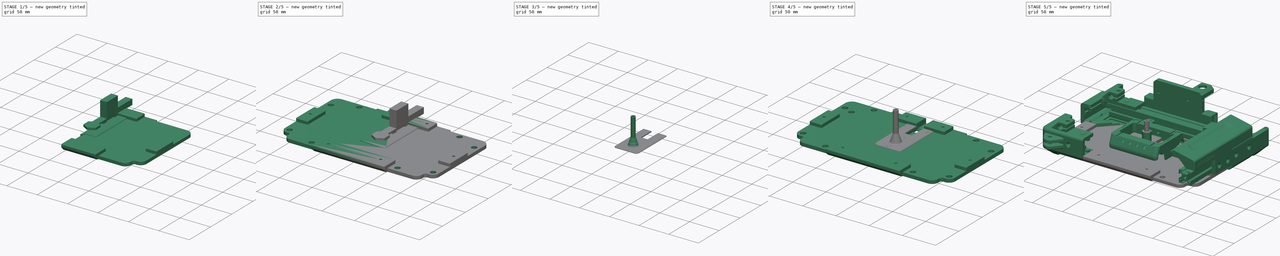
[diagram: build sequence overview — one tinted view per stage of 5, left to right]
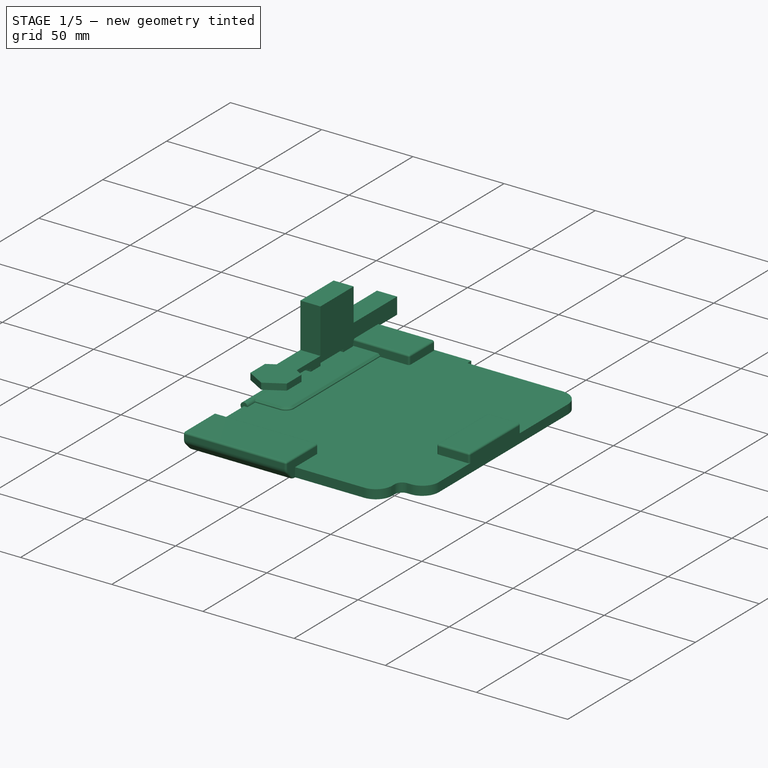
[diagram: stage 1 of 5 — iso view after this stage's code; geometry added in this stage tinted green]
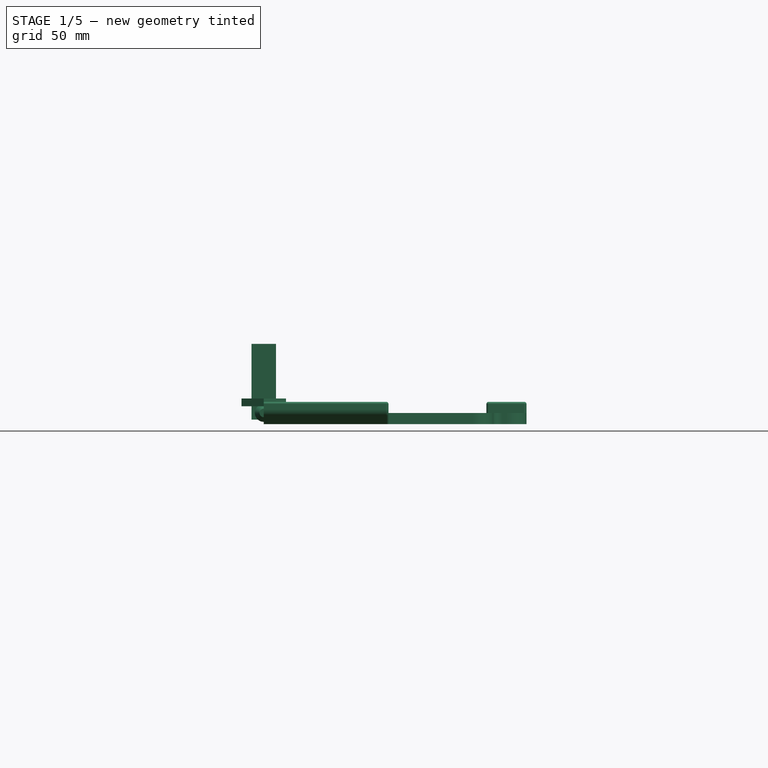
[diagram: stage 1 of 5 — front view after this stage's code; geometry added in this stage tinted green]
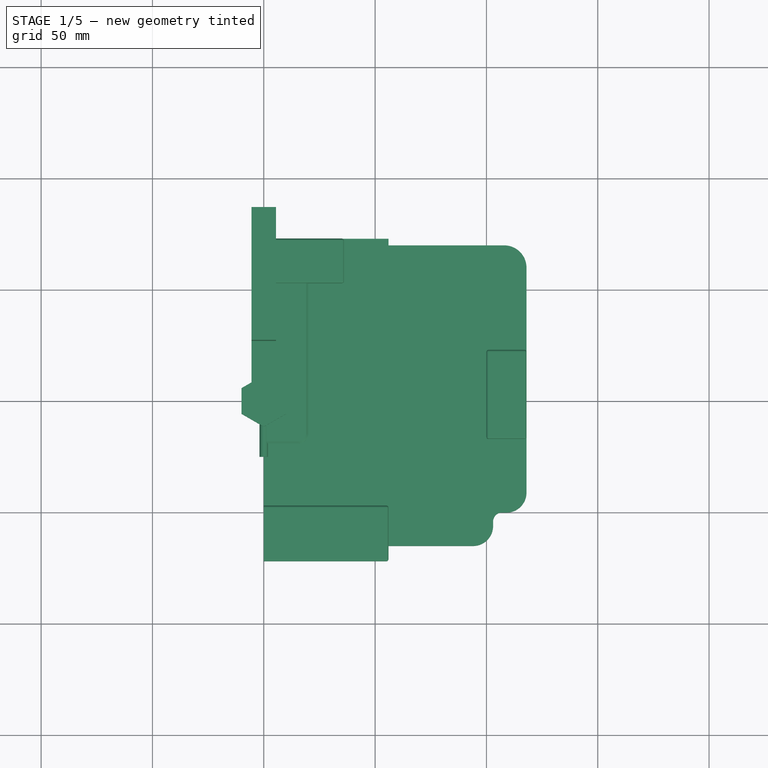
[diagram: stage 1 of 5 — top view after this stage's code; geometry added in this stage tinted green]
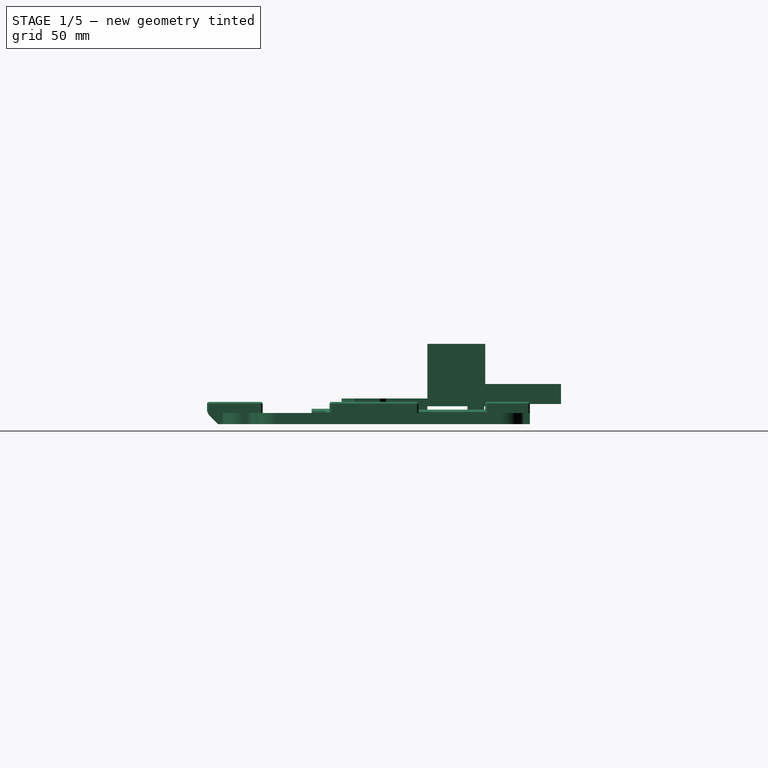
[diagram: stage 1 of 5 — right view after this stage's code; geometry added in this stage tinted green]
FCSTD DOCUMENT  (FreeCAD 0.16RUnknown)
Label: LowerCover
License: All rights reserved
LicenseURL: http://en.wikipedia.org/wiki/All_rights_reserved
objects: Part::FeaturePython×36, Part::Cut×20, Sketcher::SketchObject×18, PartDesign::Pad×13, Part::MultiFuse×10, Part::Mirroring×9, App::DocumentObjectGroup×9, PartDesign::Revolution×5, Part::Fillet×3, Part::Feature×2, Part::Chamfer×2, Part::Cylinder×2, Part::Part2DObjectPython×2, Spreadsheet::Sheet×1, Part::Extrusion×1, PartDesign::Pocket×1, PartDesign::Mirrored×1, Part::MultiCommon×1
note: 145 computed .brp shape members not serialized (recipe doc carries the construction recipe); baked Part::Feature solids carry a one-line shape summary decoded from their .brp

FEATURE [PartDesign::Pad] Pad  label="MainPlate001"
  Length = 5
  Length2 = 100
  Reversed = true
  Sketch = -> Sketch
  Type = 0
FEATURE [Part::FeaturePython] Clone  label="ALULED"  # WARN: FeaturePython — macro-defined, semantics opaque (R4)
  Placement = pos=(0,0,3) rot=(0,0,1;0.523599rad)
  Scale = (1,1,1)
FEATURE [Sketcher::SketchObject] Sketch005  label="CenterCavity"
  Placement = pos=(0,0,3) rot=(0,0,1;0rad)
  expr: Placement.Base.z = ALULED.Placement.Base.z
  sketch-geometry (7):
    g0: LineSegment StartX=10 StartY=-5.7735 StartZ=0 EndX=10 EndY=5.7735 EndZ=0
    g1: LineSegment StartX=10 StartY=5.7735 StartZ=0 EndX=0 EndY=11.547 EndZ=0
    g2: LineSegment StartX=0 StartY=11.547 StartZ=0 EndX=-10 EndY=5.7735 EndZ=0
    g3: LineSegment StartX=-10 StartY=5.7735 StartZ=0 EndX=-10 EndY=-5.7735 EndZ=0
    g4: LineSegment StartX=-10 StartY=-5.7735 StartZ=0 EndX=0 EndY=-11.547 EndZ=0
    g5: LineSegment StartX=0 StartY=-11.547 StartZ=0 EndX=10 EndY=-5.7735 EndZ=0
    g6: Circle [constr] CenterX=0 CenterY=0 CenterZ=0 NormalX=0 NormalY=0 NormalZ=1 Radius=11.547
  constraints (18):
    c: Coincident(g0,g1)
    c: Coincident(g1,g2)
    c: Coincident(g2,g3)
    c: Coincident(g3,g4)
    c: Coincident(g4,g5)
    c: Coincident(g5,g0)
    c: Equal(g0, g1-g5) x5
    c: PointOnObject(g0,g6)
    c: PointOnObject(g1,g6)
    c: PointOnObject(g2,g6)
    c: PointOnObject(g3,g6)
    c: PointOnObject(g4,g6)
    c: PointOnObject(g5,g6)
    c: Coincident(g6,g-1)
    c: Distance(g1,g0) = 20
    c: PointOnObject(g1,g-2)
    c: DistanceX(g2) = -10  'BoltX'
    c: DistanceY(g2) = 5.7735  'BoltY'
FEATURE [PartDesign::Pad] Pad004  label="LEDCavity"
  Length = 3.5
  Length2 = 100
  Placement = pos=(0,0,3) rot=(0,0,1;0rad)
  Sketch = -> Sketch005
  Type = 0
FEATURE [Sketcher::SketchObject] Sketch006  label="Wire1stSegment"
  Placement = pos=(0,0,6.5) rot=(0,0,1;0rad)
  Support = -> Pad004 [Face8]
  sketch-geometry (4):
    g0: LineSegment StartX=-5.5 StartY=20 StartZ=0 EndX=5.5 EndY=20 EndZ=0
    g1: LineSegment StartX=5.5 StartY=20 StartZ=0 EndX=5.5 EndY=0 EndZ=0
    g2: LineSegment StartX=5.5 StartY=0 StartZ=0 EndX=-5.5 EndY=0 EndZ=0
    g3: LineSegment StartX=-5.5 StartY=0 StartZ=0 EndX=-5.5 EndY=20 EndZ=0
  constraints (12):
    c: Coincident(g0,g1)
    c: Coincident(g1,g2)
    c: Coincident(g2,g3)
    c: Coincident(g3,g0)
    c: Horizontal(g0)
    c: Horizontal(g2)
    c: Vertical(g1)
    c: Vertical(g3)
    c: PointOnObject(g2,g-1)
    c: Symmetric(g2,g1,g-2)
    c: DistanceX(g0,g0) = 11
    c: DistanceY(g0) = 20
FEATURE [PartDesign::Pad] Pad005  label="Wire1stSegment001"
  Length = 2.5
  Length2 = 100
  Placement = pos=(0,0,3) rot=(0,0,1;0rad)
  Reversed = true
  Sketch = -> Sketch006
  Type = 0
FEATURE [Sketcher::SketchObject] Sketch015  label="FemtoCavity"
  Placement = pos=(5.5,0,3) rot=(0.57735,0.57735,0.57735;2.0944rad)
  Support = -> Pad005 [Face8]
  sketch-geometry (19):
    g0: LineSegment StartX=17 StartY=3.5 StartZ=0 EndX=17 EndY=0 EndZ=0
    g1: LineSegment StartX=17 StartY=0 StartZ=0 EndX=19.5 EndY=0 EndZ=0
    g2: LineSegment StartX=19.5 StartY=0 StartZ=0 EndX=19.5 EndY=-6 EndZ=0
    g3: LineSegment StartX=19.5 StartY=-6 StartZ=0 EndX=27 EndY=-6 EndZ=0
    g4: LineSegment StartX=27 StartY=-6 StartZ=0 EndX=27 EndY=0 EndZ=0
    g5: LineSegment StartX=27 StartY=0 StartZ=0 EndX=45 EndY=0 EndZ=0
    g6: LineSegment StartX=45 StartY=0 StartZ=0 EndX=45 EndY=-6 EndZ=0
    g7: LineSegment StartX=45 StartY=-6 StartZ=0 EndX=52.5 EndY=-6 EndZ=0
    g8: LineSegment StartX=52.5 StartY=-6 StartZ=0 EndX=52.5 EndY=0 EndZ=0
    g9: LineSegment StartX=52.5 StartY=0 StartZ=0 EndX=55 EndY=0 EndZ=0
    g10: LineSegment StartX=55 StartY=0 StartZ=0 EndX=55 EndY=1 EndZ=0
    g11: LineSegment StartX=55 StartY=1 StartZ=0 EndX=87 EndY=1 EndZ=0
    g12: LineSegment StartX=87 StartY=1 StartZ=0 EndX=87 EndY=10 EndZ=0
    g13: LineSegment StartX=53 StartY=10 StartZ=0 EndX=53 EndY=28 EndZ=0
    g14: LineSegment StartX=53 StartY=28 StartZ=0 EndX=27 EndY=28 EndZ=0
    g15: LineSegment StartX=27 StartY=28 StartZ=0 EndX=27 EndY=3.5 EndZ=0
    g16: LineSegment StartX=27 StartY=3.5 StartZ=0 EndX=17 EndY=3.5 EndZ=0
    g17: GeomPoint [constr] X=36 Y=28 Z=0
    g18: LineSegment StartX=53 StartY=10 StartZ=0 EndX=87 EndY=10 EndZ=0
  constraints (57):
    c: Coincident(g0,g1)
    c: Coincident(g1,g2)
    c: Coincident(g2,g3)
    c: Coincident(g3,g4)
    c: Coincident(g4,g5)
    c: Coincident(g5,g6)
    c: Coincident(g6,g7)
    c: Coincident(g7,g8)
    c: Coincident(g8,g9)
    c: Coincident(g9,g10)
    c: Coincident(g10,g11)
    c: Coincident(g11,g12)
    c: Coincident(g13,g14)
    c: Coincident(g14,g15)
    c: Coincident(g0,g16)
    c: Horizontal(g5)
    c: Horizontal(g16)
    c: Horizontal(g3)
    c: Horizontal(g14)
    c: Horizontal(g11)
    c: Horizontal(g9)
    c: Horizontal(g7)
    c: Horizontal(g1)
    c: Vertical(g0)
    c: Vertical(g2)
    c: Vertical(g4)
    c: Vertical(g15)
    c: Vertical(g13)
    c: Vertical(g6)
    c: Vertical(g8)
    c: Vertical(g10)
    c: Vertical(g12)
    c: PointOnObject(g0,g-1)
    c: PointOnObject(g4,g15)
    c: DistanceY(g0) = 3.5
    c: Equal(g3,g7)
    c: PointOnObject(g6,g3)
    c: DistanceX(g17) = 36
    c: PointOnObject(g4,g-1)
    c: DistanceX(g3,g3) = 7.5
    c: DistanceY(g15) = 3.5
    c: PointOnObject(g8,g5)
    c: DistanceX(g0,g9) = 38
    c: DistanceX(g0) = 17
    c: DistanceY(g10,g10) = 1
    c: Coincident(g15,g16)
    c: Horizontal(g18)
    c: Coincident(g12,g18)
    c: DistanceY(g18) = 10
    c: DistanceX(g14,g17) = 9
    c: PointOnObject(g17,g14)
    c: DistanceX(g5,g5) = 18
    c: DistanceY(g8,g8) = 6
    c: Coincident(g13,g18)
    c: DistanceX(g13) = 53
    c: DistanceX(g12) = 87
    c: DistanceY(g14) = 28
FEATURE [PartDesign::Pad] Pad006  label="FemtoCavity001"
  Length = 10
  Length2 = 100
  Placement = pos=(0,0,3) rot=(0,0,1;0rad)
  Reversed = true
  Sketch = -> Sketch015
  Type = 3
  UpToFace = -> Pad005 [Face10]
FEATURE [App::DocumentObjectGroup] Group005  label="Nuts_src"
  Group = -> [Pad010]
FEATURE [PartDesign::Pad] Pad011  label="IlluminationPad001"
  Length = 1.5
  Length2 = 100
  Sketch = -> Sketch019
  Type = 0
FEATURE [Part::Chamfer] Chamfer002  label="IlluChamfer"
  Base = -> Pad011
  Edges = 1 edges r=1: [Edge4]
FEATURE [Sketcher::SketchObject] Sketch028  label="M4DIN7991Bolt"
  expr: Constraints[11] = 2 - pars.CilTight
  sketch-geometry (5):
    g0: LineSegment StartX=4 StartY=0 StartZ=0 EndX=0 EndY=0 EndZ=0
    g1: LineSegment StartX=0 StartY=0 StartZ=0 EndX=0 EndY=-25 EndZ=0
    g2: LineSegment StartX=0 StartY=-25 StartZ=0 EndX=1.9 EndY=-25 EndZ=0
    g3: LineSegment StartX=1.9 StartY=-25 StartZ=0 EndX=1.9 EndY=-2.1 EndZ=0
    g4: LineSegment StartX=1.9 StartY=-2.1 StartZ=0 EndX=4 EndY=0 EndZ=0
  constraints (14):
    c: Coincident(g0,g1)
    c: Coincident(g1,g2)
    c: Coincident(g2,g3)
    c: Coincident(g3,g4)
    c: Coincident(g4,g0)
    c: Horizontal(g2)
    c: Horizontal(g0)
    c: Vertical(g1)
    c: Vertical(g3)
    c: Coincident(g0,g-1)
    c: Angle(g0,g4) = 0.785398
    c: DistanceX(g2,g2) = 1.9
    c: DistanceY(g1,g1) = 25
    c: DistanceX(g0,g0) = 4
FEATURE [Spreadsheet::Sheet] Spreadsheet001  label="pars"
  cells = A1=Bolts and Nuts; B1=Value; D1=Components; E1=Value; A2=Thread Tight Tolerance (Radius, ratio); B2(ThrTighRatio)=0.96; D2=Tight Cilinder Tolerances (Radius, mm); E2(CilTight)=0.1; A3=Thread Tight Tolerance (Radius, mm); B3(ThrTightmm)=0.1; D3=Loose Cilinder Tolerances (Radius, mm); E3(CilLoose)=0.1; A5=Nut Slot Width Clearance (mm); B5(NutWidthClearmm)=0.1; A6=Nut Slot Thickess Clearance (mm); B6(NutThickClearmm)=0.1; A13=Particular parameters; B13=Value
FEATURE [PartDesign::Revolution] Revolution004  label="M4DIN7991Bolt001"
  Angle = 360
  Axis = (0,1,0)
  Base = (0,0,0)
  ReferenceAxis = -> Sketch028 [V_Axis]
  Reversed = true
  Sketch = -> Sketch028
FEATURE [App::DocumentObjectGroup] Group  label="Reference"
  Group = -> [Part__Mirroring007,Part__Mirroring,Xcarriage_01,RAxisShield_step1_01,LBackCorner_step1_01,RBackCorner_step1_01,FrontCorner_01,ElecMain_01,Part__Mirroring023006,Clone]
FEATURE [Sketcher::SketchObject] Sketch030  label="BackPad"
  sketch-geometry (4):
    g0: LineSegment StartX=36 StartY=73 StartZ=0 EndX=0 EndY=73 EndZ=0
    g1: LineSegment StartX=0 StartY=73 StartZ=0 EndX=0 EndY=53 EndZ=0
    g2: LineSegment StartX=0 StartY=53 StartZ=0 EndX=36 EndY=53 EndZ=0
    g3: LineSegment StartX=36 StartY=53 StartZ=0 EndX=36 EndY=73 EndZ=0
  constraints (12):
    c: Coincident(g0,g1)
    c: Coincident(g1,g2)
    c: Coincident(g2,g3)
    c: Coincident(g3,g0)
    c: Horizontal(g0)
    c: Horizontal(g2)
    c: Vertical(g1)
    c: Vertical(g3)
    c: DistanceY(g0) = 73
    c: DistanceY(g3,g3) = 20
    c: PointOnObject(g0,g-2)
    c: DistanceX(g0,g0) = 36
FEATURE [PartDesign::Pad] Pad014  label="BackPad001"
  Length = 5
  Length2 = 100
  Sketch = -> Sketch030
  Type = 0
FEATURE [Sketcher::SketchObject] Sketch031  label="SidePad"
  sketch-geometry (4):
    g0: LineSegment StartX=100 StartY=23 StartZ=0 EndX=118 EndY=23 EndZ=0
    g1: LineSegment StartX=118 StartY=23 StartZ=0 EndX=118 EndY=-17 EndZ=0
    g2: LineSegment StartX=118 StartY=-17 StartZ=0 EndX=100 EndY=-17 EndZ=0
    g3: LineSegment StartX=100 StartY=-17 StartZ=0 EndX=100 EndY=23 EndZ=0
  constraints (12):
    c: Coincident(g0,g1)
    c: Coincident(g1,g2)
    c: Coincident(g2,g3)
    c: Coincident(g3,g0)
    c: Horizontal(g0)
    c: Horizontal(g2)
    c: Vertical(g1)
    c: Vertical(g3)
    c: DistanceY(g1,g1) = 40
    c: DistanceY(g1) = -17
    c: DistanceX(g0) = 118
    c: DistanceX(g0) = 100
FEATURE [PartDesign::Pad] Pad015  label="SidePad001"
  Length = 5
  Length2 = 5
  Sketch = -> Sketch031
  Type = 4
FEATURE [Sketcher::SketchObject] Sketch032  label="FrontPad"
  sketch-geometry (4):
    g0: LineSegment StartX=0 StartY=-72 StartZ=0 EndX=56 EndY=-72 EndZ=0
    g1: LineSegment StartX=56 StartY=-72 StartZ=0 EndX=56 EndY=-47 EndZ=0
    g2: LineSegment StartX=56 StartY=-47 StartZ=0 EndX=0 EndY=-47 EndZ=0
    g3: LineSegment StartX=0 StartY=-47 StartZ=0 EndX=0 EndY=-72 EndZ=0
  constraints (12):
    c: Coincident(g0,g1)
    c: Coincident(g1,g2)
    c: Coincident(g2,g3)
    c: Coincident(g3,g0)
    c: Horizontal(g0)
    c: Horizontal(g2)
    c: Vertical(g1)
    c: Vertical(g3)
    c: PointOnObject(g2,g-2)
    c: DistanceY(g2) = -47
    c: DistanceX(g2,g2) = 56
    c: DistanceY(g3,g3) = 25
FEATURE [PartDesign::Pad] Pad016  label="FrontPad001"
  Length = 5
  Length2 = 5
  Sketch = -> Sketch032
  Type = 4
FEATURE [Part::MultiFuse] Fusion007  label="BackPadFusion"
  Shapes = -> [Pad,Pad014]
FEATURE [Part::MultiFuse] Fusion008  label="SidePadFusion"
  Shapes = -> [Fusion007,Pad015]
FEATURE [Part::MultiFuse] Fusion009  label="FrontPadFusion"
  Shapes = -> [Fusion008,Pad016]
FEATURE [Part::FeaturePython] refine005  label="refine_FrontPadFusion"  # WARN: FeaturePython — macro-defined, semantics opaque (R4)
  Base = -> Fusion009
FEATURE [Part::Chamfer] Chamfer001  label="NiceChamfer001"
  Base = -> refine005
  Edges = 1 edges r=5: [Edge3]
FEATURE [Part::Fillet] Fillet001003  label="NiceFillet"
  Base = -> Chamfer001
  Edges = 1 edges r=4: [Edge2]
FEATURE [Part::Fillet] Fillet001005  label="NicerFillets"
  Base = -> Fillet001003
  Edges = 18 edges r=1: [Edge3,Edge4,Edge16,Edge17,Edge22,Edge53,Edge54,Edge56,Edge57,Edge58,Edge66,Edge67,Edge68,Edge71,Edge72,Edge73,Edge74,Edge75]
FEATURE [Part::MultiFuse] Fusion010  label="IlluPadAdd"
  Shapes = -> [Fillet001005,Chamfer002]
FEATURE [Part::FeaturePython] refine006  label="refine_IlluPadAdd"  # WARN: FeaturePython — macro-defined, semantics opaque (R4)
  Base = -> Fusion010
FEATURE [Part::FeaturePython] refine008  label="refine_FemtoCavity001"  # WARN: FeaturePython — macro-defined, semantics opaque (R4)
  Base = -> Pad006
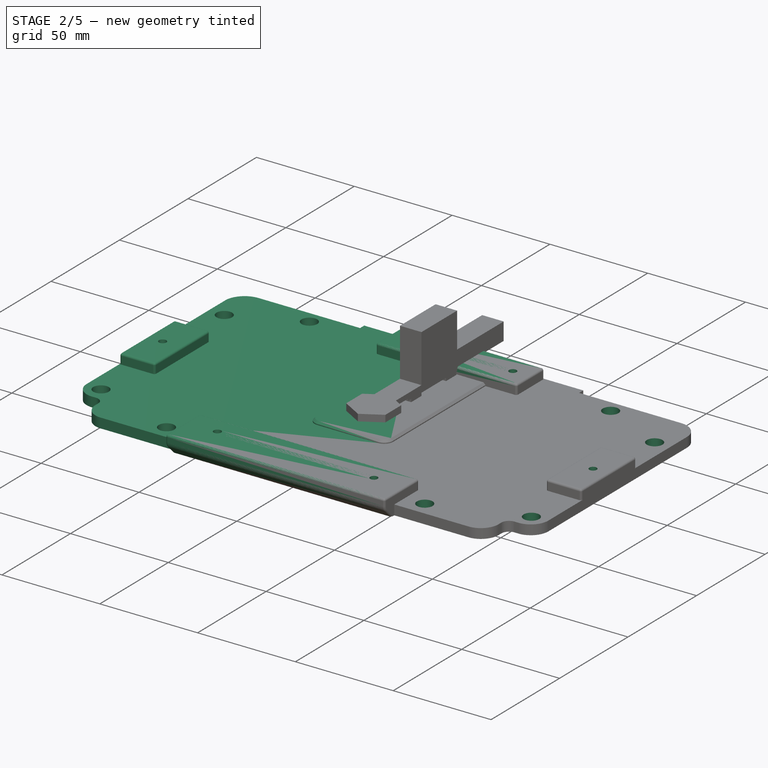
[diagram: stage 2 of 5 — iso view after this stage's code; geometry added in this stage tinted green]
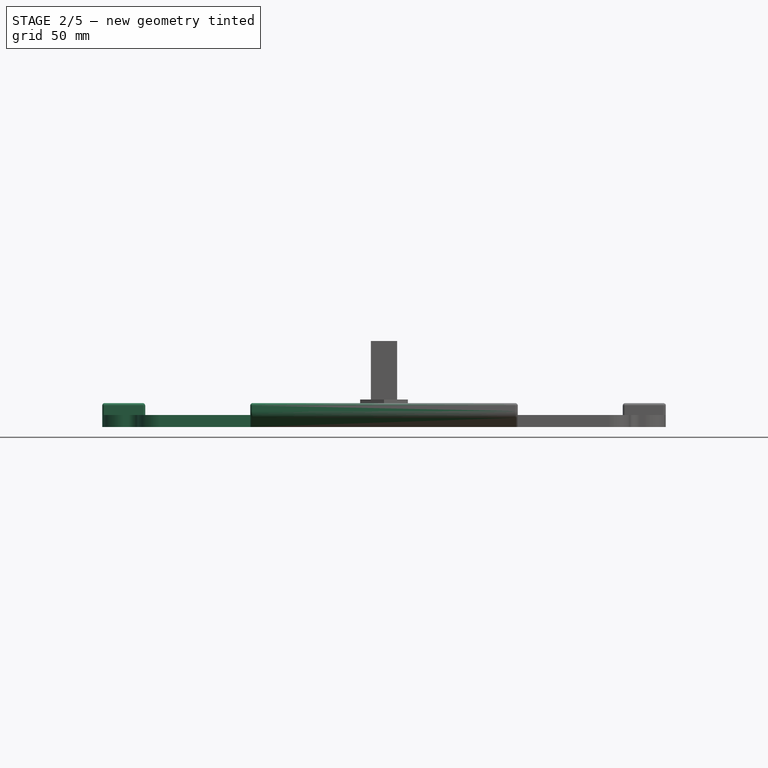
[diagram: stage 2 of 5 — front view after this stage's code; geometry added in this stage tinted green]
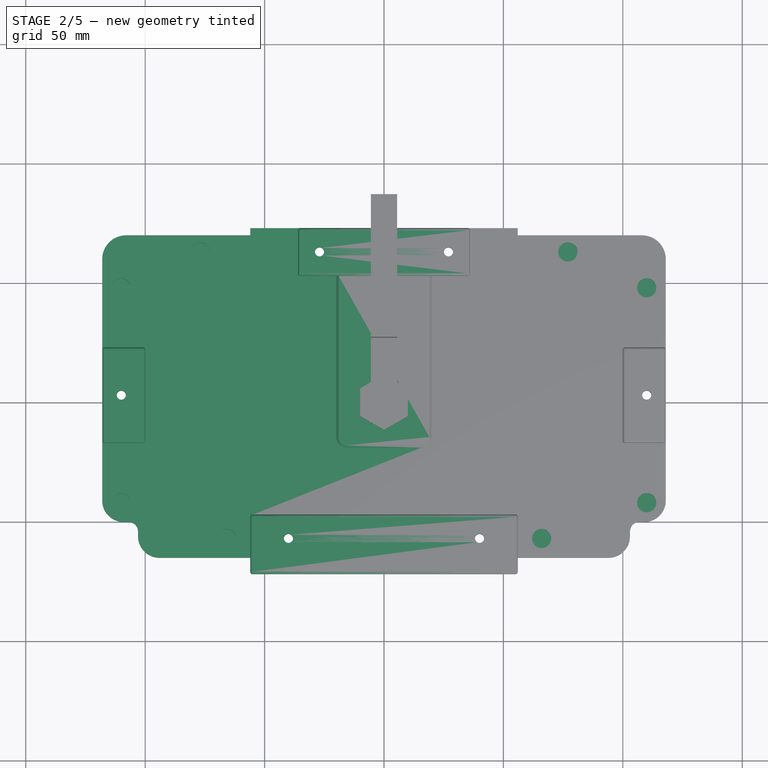
[diagram: stage 2 of 5 — top view after this stage's code; geometry added in this stage tinted green]
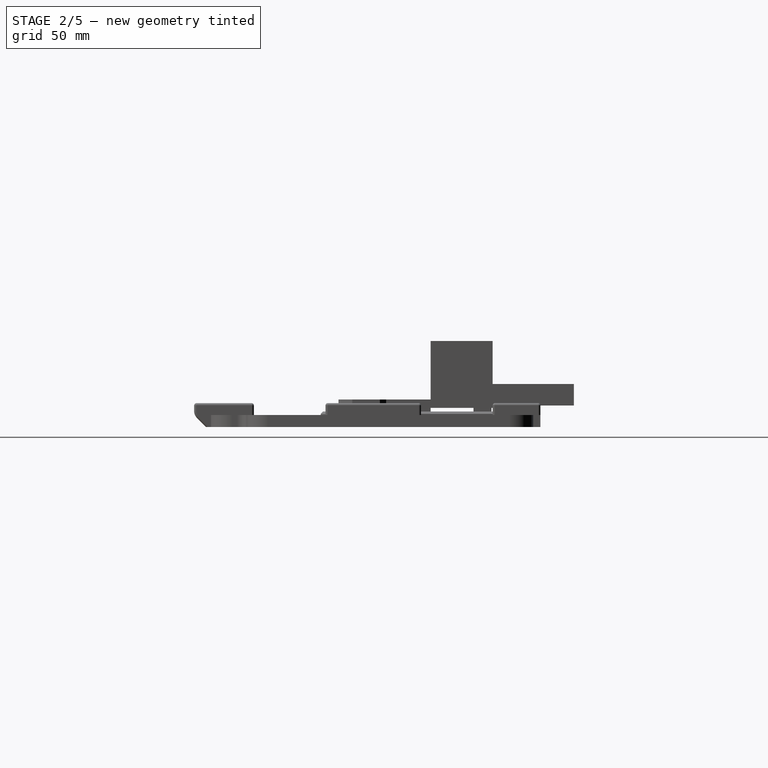
[diagram: stage 2 of 5 — right view after this stage's code; geometry added in this stage tinted green]
FEATURE [Sketcher::SketchObject] Sketch018  label="M4Bolt"
  Placement = pos=(0,0,0) rot=(1,0,0;1.5708rad)
  expr: Constraints[15] = 2 - pars.CilTight
  sketch-geometry (6):
    g0: LineSegment StartX=4 StartY=5 StartZ=0 EndX=4 EndY=0 EndZ=0
    g1: LineSegment StartX=4 StartY=0 StartZ=0 EndX=1.9 EndY=0 EndZ=0
    g2: LineSegment StartX=1.9 StartY=0 StartZ=0 EndX=1.9 EndY=-15 EndZ=0
    g3: LineSegment StartX=1.9 StartY=-15 StartZ=0 EndX=0 EndY=-15 EndZ=0
    g4: LineSegment StartX=0 StartY=-15 StartZ=0 EndX=0 EndY=5 EndZ=0
    g5: LineSegment StartX=0 StartY=5 StartZ=0 EndX=4 EndY=5 EndZ=0
  constraints (18):
    c: Coincident(g0,g1)
    c: Coincident(g1,g2)
    c: Coincident(g2,g3)
    c: Coincident(g3,g4)
    c: Coincident(g4,g5)
    c: Coincident(g0,g5)
    c: Horizontal(g5)
    c: Horizontal(g1)
    c: Horizontal(g3)
    c: Vertical(g4)
    c: Vertical(g2)
    c: Vertical(g0)
    c: PointOnObject(g4,g-2)
    c: PointOnObject(g1,g-1)
    c: DistanceX(g5,g5) = 4
    c: DistanceX(g3,g3) = 1.9
    c: DistanceY(g0,g0) = 5
    c: DistanceY(g4,g4) = 20
FEATURE [PartDesign::Revolution] Revolution002  label="M4Bolt001"
  Angle = 360
  Axis = (0,0,1)
  Base = (0,0,0)
  Placement = pos=(0,0,0) rot=(1,0,0;1.5708rad)
  ReferenceAxis = -> Sketch018 [V_Axis]
  Reversed = true
  Sketch = -> Sketch018
FEATURE [Part::FeaturePython] Clone013  label="Clone of M4Bolt003"  # Draft clone (typed FeaturePython)
  Objects = -> [Revolution002]
  Placement = pos=(66,-57,1) rot=(-1,0,0;1.5708rad)
  Scale = (1,1,1)
FEATURE [Part::FeaturePython] Clone014  label="Clone of M4Bolt004"  # Draft clone (typed FeaturePython)
  Objects = -> [Revolution002]
  Placement = pos=(77,63,1) rot=(-1,0,0;1.5708rad)
  Scale = (1,1,1)
FEATURE [Part::FeaturePython] Clone015  label="Clone of M4Bolt005"  # Draft clone (typed FeaturePython)
  Objects = -> [Revolution002]
  Placement = pos=(110,48,1) rot=(-1,0,0;1.5708rad)
  Scale = (1,1,1)
FEATURE [Sketcher::SketchObject] Sketch020  label="M3nut"
  sketch-geometry (7):
    g0: LineSegment StartX=2.64138 StartY=-1.525 StartZ=0 EndX=2.64138 EndY=1.525 EndZ=0
    g1: LineSegment StartX=2.64138 StartY=1.525 StartZ=0 EndX=0 EndY=3.05 EndZ=0
    g2: LineSegment StartX=0 StartY=3.05 StartZ=0 EndX=-2.64138 EndY=1.525 EndZ=0
    g3: LineSegment StartX=-2.64138 StartY=1.525 StartZ=0 EndX=-2.64138 EndY=-1.525 EndZ=0
    g4: LineSegment StartX=-2.64138 StartY=-1.525 StartZ=0 EndX=0 EndY=-3.05 EndZ=0
    g5: LineSegment StartX=0 StartY=-3.05 StartZ=0 EndX=2.64138 EndY=-1.525 EndZ=0
    g6: Circle [constr] CenterX=0 CenterY=0 CenterZ=0 NormalX=0 NormalY=0 NormalZ=1 Radius=3.05
  constraints (16):
    c: Coincident(g0,g1)
    c: Coincident(g1,g2)
    c: Coincident(g2,g3)
    c: Coincident(g3,g4)
    c: Coincident(g4,g5)
    c: Coincident(g5,g0)
    c: Equal(g0, g1-g5) x5
    c: PointOnObject(g0,g6)
    c: PointOnObject(g1,g6)
    c: PointOnObject(g2,g6)
    c: PointOnObject(g3,g6)
    c: PointOnObject(g4,g6)
    c: PointOnObject(g5,g6)
    c: Coincident(g6,g-1)
    c: Vertical(g3)
    c: Radius(g6) = 3.05
FEATURE [PartDesign::Pad] Pad010  label="M3nut001"
  Length = 3
  Length2 = 100
  Sketch = -> Sketch020
  Type = 0
FEATURE [Part::FeaturePython] Clone021  label="Clone of M4Bolt007"  # Draft clone (typed FeaturePython)
  Objects = -> [Revolution002]
  Placement = pos=(110,-42,1) rot=(-1,0,0;1.5708rad)
  Scale = (1,1,1)
FEATURE [Part::FeaturePython] Clone009002004  label="Clone of M3nut001"  # Draft clone (typed FeaturePython)
  Objects = -> [Pad010]
  Placement = pos=(17,47,-5) rot=(0,0,1;1.5708rad)
  Scale = (1,1,1)
FEATURE [App::DocumentObjectGroup] Group004  label="Bolts_src"
  Group = -> [Revolution001,Revolution002,Revolution004]
FEATURE [App::DocumentObjectGroup] Group003  label="Component_src"
  Group = -> [Group004,Group005,Cylinder001]
FEATURE [Part::FeaturePython] Clone009002006  label="Clone of M4DIN7991Bolt001"  # Draft clone (typed FeaturePython)
  Objects = -> [Revolution004]
  Placement = pos=(40,-57,-5) rot=(-1,0,0;1.5708rad)
  Scale = (1,1,1)
FEATURE [Part::FeaturePython] Clone009002007  label="Clone of M4DIN7991Bolt002"  # Draft clone (typed FeaturePython)
  Objects = -> [Revolution004]
  Placement = pos=(27,63,-5) rot=(-1,0,0;1.5708rad)
  Scale = (1,1,1)
FEATURE [Part::FeaturePython] Clone009002008  label="Clone of M4DIN7991Bolt003"  # Draft clone (typed FeaturePython)
  Objects = -> [Revolution004]
  Placement = pos=(110,3,-5) rot=(-1,0,0;1.5708rad)
  Scale = (1,1,1)
FEATURE [Part::Cut] Cut020
  Base = -> refine006
  Tool = -> Clone009002007
FEATURE [Part::Cut] Cut021
  Base = -> Cut020
  Tool = -> Clone014
FEATURE [Part::Cut] Cut022
  Base = -> Cut021
  Tool = -> Clone015
FEATURE [Part::Cut] Cut023
  Base = -> Cut022
  Tool = -> Clone009002008
FEATURE [Part::Cut] Cut024
  Base = -> Cut023
  Tool = -> Clone021
FEATURE [Part::Cut] Cut025
  Base = -> Cut024
  Tool = -> Clone013
FEATURE [Part::Cut] Cut026
  Base = -> Cut025
  Tool = -> Clone009002006
FEATURE [Part::Cut] Cut027  label="HardwareCuts"
  Base = -> Cut026
  Tool = -> Clone009002004
FEATURE [Part::Mirroring] Part__Mirroring023008  label="HardwareCuts (Mirror #6)"
  Base = (0,0,0)
  Normal = (1,0,0)
  Source = -> Cut027
FEATURE [Part::MultiFuse] Fusion  label="Mirroring"
  Shapes = -> [Cut027,Part__Mirroring023008]
FEATURE [Part::FeaturePython] refine  label="refine_Mirroring"  # WARN: FeaturePython — macro-defined, semantics opaque (R4)
  Base = -> Fusion
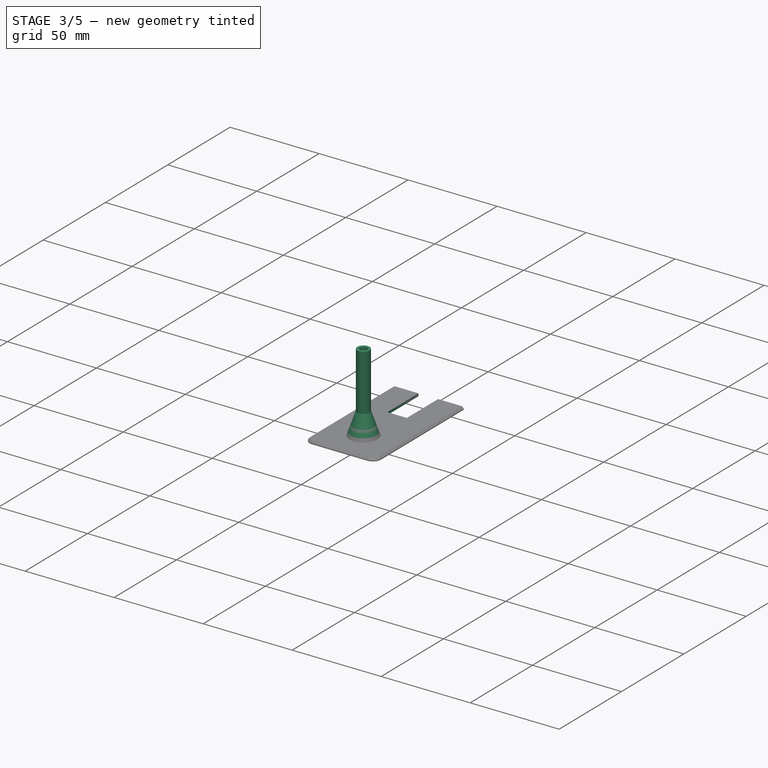
[diagram: stage 3 of 5 — iso view after this stage's code; geometry added in this stage tinted green]
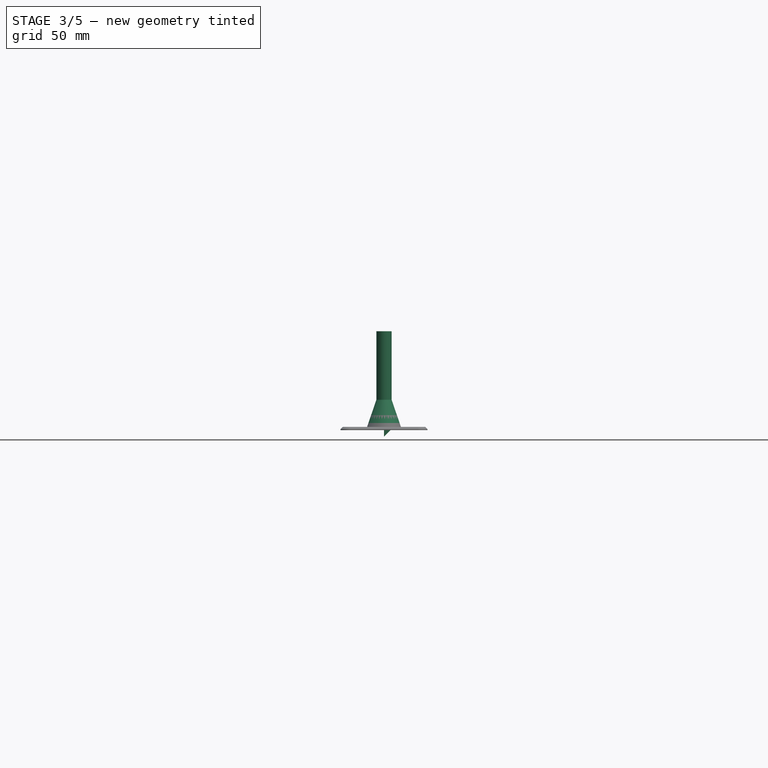
[diagram: stage 3 of 5 — front view after this stage's code; geometry added in this stage tinted green]
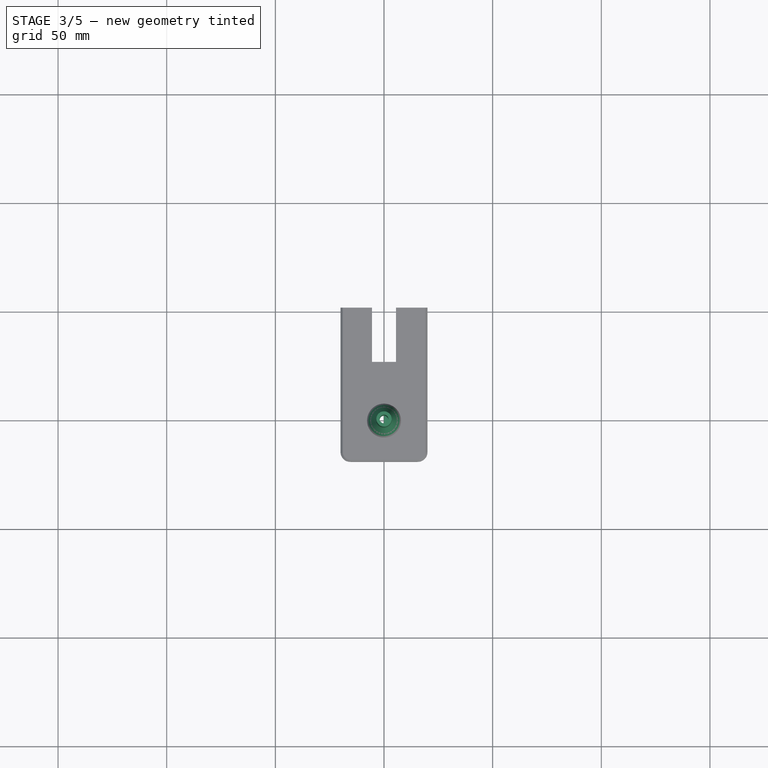
[diagram: stage 3 of 5 — top view after this stage's code; geometry added in this stage tinted green]
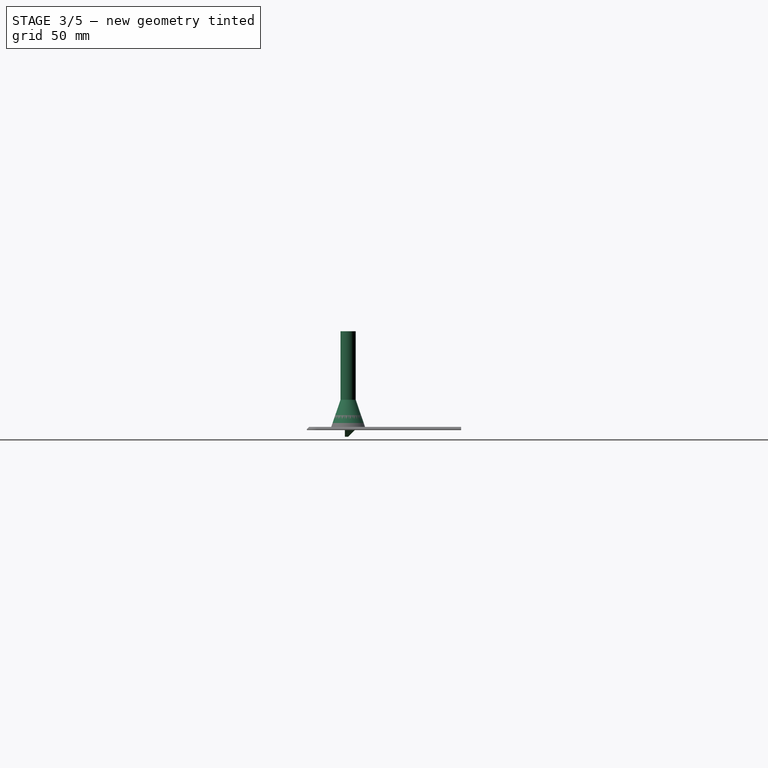
[diagram: stage 3 of 5 — right view after this stage's code; geometry added in this stage tinted green]
FEATURE [Sketcher::SketchObject] Sketch022  label="TubeSection"
  Placement = pos=(0,0,0) rot=(0.57735,0.57735,0.57735;2.0944rad)
  sketch-geometry (6):
    g0: LineSegment StartX=2 StartY=45.5 StartZ=0 EndX=3.5 EndY=45.5 EndZ=0
    g1: LineSegment StartX=3.5 StartY=45.5 StartZ=0 EndX=3.5 EndY=14 EndZ=0
    g2: LineSegment StartX=3.5 StartY=14 StartZ=0 EndX=7.8 EndY=1.5 EndZ=0
    g3: LineSegment StartX=7.8 StartY=1.5 StartZ=0 EndX=5 EndY=1.5 EndZ=0
    g4: LineSegment StartX=5 StartY=1.5 StartZ=0 EndX=2 EndY=14 EndZ=0
    g5: LineSegment StartX=2 StartY=14 StartZ=0 EndX=2 EndY=45.5 EndZ=0
  constraints (18):
    c: Coincident(g0,g1)
    c: Coincident(g1,g2)
    c: Coincident(g2,g3)
    c: Coincident(g3,g4)
    c: Coincident(g4,g5)
    c: Coincident(g5,g0)
    c: Horizontal(g0)
    c: Horizontal(g3)
    c: Vertical(g5)
    c: Vertical(g1)
    c: DistanceY(g3) = 1.5
    c: DistanceX(g3) = 5
    c: DistanceX(g2) = 7.8
    c: DistanceX(g0) = 3.5
    c: DistanceX(g0) = 2
    c: DistanceY(g0) = 45.5
    c: DistanceY(g1,g4) = 0
    c: DistanceY(g1) = 14
FEATURE [PartDesign::Revolution] Revolution003  label="Tube"
  Angle = 360
  Axis = (0,0,1)
  Base = (0,0,0)
  Placement = pos=(0,0,0) rot=(0.57735,0.57735,0.57735;2.0944rad)
  ReferenceAxis = -> Sketch022 [V_Axis]
  Sketch = -> Sketch022
FEATURE [Part::FeaturePython] Clone009002005  label="Clone of M3nut002"  # Draft clone (typed FeaturePython)
  Objects = -> [Pad010]
  Placement = pos=(0,-15,-5) rot=(0,0,1;0rad)
  Scale = (1,1,1)
FEATURE [Part::Part2DObjectPython] Clone2D  label="Clone of IlluminationLid (2D)"  # Draft 2D object (typed FeaturePython)
  Objects = -> [Sketch019]
  Scale = (1,1,1)
FEATURE [Part::Extrusion] Extrude  label="IlluminationLidCut"
  Base = -> Clone2D
  Dir = (0,0,2)
  Solid = true
FEATURE [Part::Mirroring] Part__Mirroring023004  label="IlluminationLidCut (Mirror #5)"
  Base = (0,0,0)
  Normal = (1,0,0)
  Source = -> Extrude
FEATURE [Part::MultiFuse] Fusion004  label="IlluminationLidCut001"
  Shapes = -> [Extrude,Part__Mirroring023004]
FEATURE [Part::FeaturePython] Clone031  label="Clone of IlluminationLidCut001"  # Draft clone (typed FeaturePython)
  Objects = -> [Fusion004]
  Placement = pos=(0,-1,0) rot=(0,0,1;0rad)
  Scale = (1,1,1)
FEATURE [Sketcher::SketchObject] Sketch016  label="BoltFix"
  Placement = pos=(0,0,6.5) rot=(0,0,1;0rad)
  Support = -> refine008 [Face26]
  sketch-geometry (1):
    g0: Circle CenterX=0 CenterY=14 CenterZ=0 NormalX=0 NormalY=0 NormalZ=1 Radius=3
  constraints (3):
    c: PointOnObject(g0,g-2)
    c: DistanceY(g0) = 14
    c: Radius(g0) = 3
FEATURE [PartDesign::Pocket] Pocket001  label="BoltFix001"
  Length = 5
  Sketch = -> Sketch016
  Type = 1
FEATURE [Sketcher::SketchObject] Sketch011  label="LEDTube"
  Placement = pos=(0,0,6.5) rot=(0,0,1;0rad)
  Support = -> Pocket001 [Face3]
  sketch-geometry (1):
    g0: Circle CenterX=0 CenterY=0 CenterZ=0 NormalX=0 NormalY=0 NormalZ=1 Radius=5
  constraints (2):
    c: Coincident(g0,g-1)
    c: Radius(g0) = 5
FEATURE [PartDesign::Pad] Pad007  label="LEDTube001"
  Length = 10
  Length2 = 100
  Sketch = -> Sketch011
  Type = 0
FEATURE [Sketcher::SketchObject] Sketch008  label="CenterVent"
  Placement = pos=(0,0,3) rot=(1,0,0;3.14159rad)
  Support = -> Pad007 [Face32]
  sketch-geometry (4):
    g0: ArcOfCircle CenterX=6 CenterY=0 CenterZ=0 NormalX=0 NormalY=0 NormalZ=1 Radius=1 StartAngle=4.71239 EndAngle=7.85398
    g1: ArcOfCircle CenterX=-6 CenterY=0 CenterZ=0 NormalX=0 NormalY=0 NormalZ=1 Radius=1 StartAngle=1.5708 EndAngle=4.71239
    g2: LineSegment StartX=6 StartY=1 StartZ=0 EndX=-6 EndY=1 EndZ=0
    g3: LineSegment StartX=6 StartY=-1 StartZ=0 EndX=-6 EndY=-1 EndZ=0
  constraints (10):
    c: Tangent(g0,g3) = 1.5708
    c: Tangent(g0,g2) = -1.5708
    c: Tangent(g2,g1) = -1.5708
    c: Tangent(g3,g1) = 1.5708
    c: Horizontal(g2)
    c: Equal(g0,g1)
    c: PointOnObject(g0,g-1)
    c: Symmetric(g1,g0,g-2)
    c: Radius(g0) = 1
    c: DistanceX(g1,g0) = 12
FEATURE [PartDesign::Pad] Pad008  label="CenterVent001"
  Length = 10
  Length2 = 100
  Sketch = -> Sketch008
  Type = 0
FEATURE [Sketcher::SketchObject] Sketch009  label="SideVent"
  Placement = pos=(0,0,3) rot=(1,0,0;3.14159rad)
  Support = -> Pad008 [Face32]
  sketch-geometry (4):
    g0: ArcOfCircle CenterX=-3.5 CenterY=4.8 CenterZ=0 NormalX=0 NormalY=0 NormalZ=1 Radius=1 StartAngle=1.5708 EndAngle=4.71239
    g1: ArcOfCircle CenterX=3.5 CenterY=4.8 CenterZ=0 NormalX=0 NormalY=0 NormalZ=1 Radius=1 StartAngle=4.71239 EndAngle=7.85398
    g2: LineSegment StartX=-3.5 StartY=3.8 StartZ=0 EndX=3.5 EndY=3.8 EndZ=0
    g3: LineSegment StartX=-3.5 StartY=5.8 StartZ=0 EndX=3.5 EndY=5.8 EndZ=0
  constraints (10):
    c: Tangent(g0,g3) = 1.5708
    c: Tangent(g0,g2) = -1.5708
    c: Tangent(g2,g1) = -1.5708
    c: Tangent(g3,g1) = 1.5708
    c: Horizontal(g2)
    c: Equal(g0,g1)
    c: Symmetric(g0,g1,g-2)
    c: DistanceX(g0,g1) = 7
    c: Radius(g0) = 1
    c: DistanceY(g1) = 4.8
FEATURE [PartDesign::Pad] Pad009  label="SideVent001"
  Length = 10
  Length2 = 100
  Sketch = -> Sketch009
  Type = 0
FEATURE [PartDesign::Mirrored] Mirrored  label="SideVents"
  MirrorPlane = -> Sketch009 [H_Axis]
  Originals = -> [Pad009]
FEATURE [Part::FeaturePython] Clone010  label="Illumination"  # Draft clone (typed FeaturePython)
  Objects = -> [Mirrored]
  Placement = pos=(0,0,-6.5) rot=(0,0,1;0rad)
  Scale = (1,1,1)
FEATURE [Part::Cut] Cut  label="IlluminationCut"
  Base = -> refine
  Tool = -> Clone010
FEATURE [Part::Cut] Cut019  label="M3NutCut001"
  Base = -> Cut
  Tool = -> Clone009002005
FEATURE [Sketcher::SketchObject] Sketch001  label="CarrilSec"
  Placement = pos=(0,0,0) rot=(1,0,0;1.5708rad)
  sketch-geometry (3):
    g0: LineSegment StartX=0 StartY=0 StartZ=0 EndX=0 EndY=-3 EndZ=0
    g1: LineSegment StartX=0 StartY=-3 StartZ=0 EndX=3 EndY=0 EndZ=0
    g2: LineSegment StartX=3 StartY=0 StartZ=0 EndX=0 EndY=0 EndZ=0
  constraints (8):
    c: Coincident(g0,g1)
    c: Coincident(g1,g2)
    c: Coincident(g0,g2)
    c: Coincident(g0,g-1)
    c: Horizontal(g2)
    c: Vertical(g0)
    c: Angle(g2,g1) = 0.785398
    c: DistanceX(g2,g2) = 3
FEATURE [PartDesign::Pad] Pad017  label="CarrilLen"
  Length = 1.5
  Length2 = 100
  Placement = pos=(0,0,0) rot=(1,0,0;1.5708rad)
  Sketch = -> Sketch001
  Type = 0
FEATURE [Part::Part2DObjectPython] Clone2D001  label="Clone of CarrilSec (2D)"  # Draft 2D object (typed FeaturePython)
  Objects = -> [Sketch001]
  Placement = pos=(0,0,0) rot=(1,0,0;1.5708rad)
  Scale = (1,1,1)
FEATURE [PartDesign::Revolution] Revolution
  Angle = 90
  Axis = (0,0,1)
  Base = (0,0,0)
  Placement = pos=(0,0,0) rot=(1,0,0;1.5708rad)
  ReferenceAxis = -> Clone2D001 [V_Axis]
  Sketch = -> Clone2D001
FEATURE [Part::MultiFuse] Fusion011
  Shapes = -> [Pad017,Revolution]
FEATURE [Part::FeaturePython] Clone009002013  label="Clone of M3NutCut001"  # Draft clone (typed FeaturePython)
  Objects = -> [Cut019]
  Scale = (1,1,1)
FEATURE [Part::MultiCommon] Common001  label="LidCommon"
  Shapes = -> [Clone031,Clone009002013]
FEATURE [Part::MultiFuse] Fusion012  label="TubeFusion"
  Shapes = -> [Revolution003,Common001]
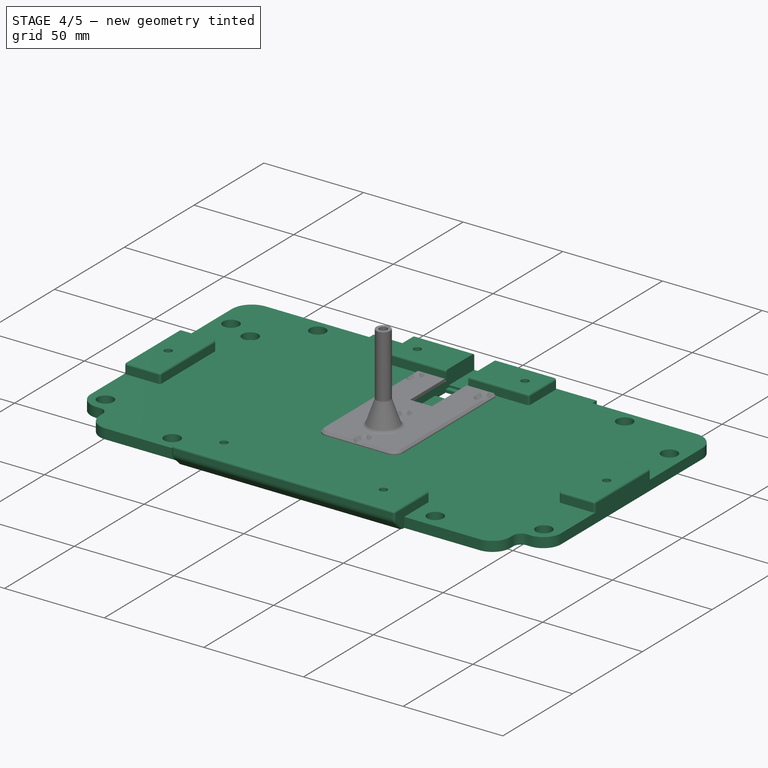
[diagram: stage 4 of 5 — iso view after this stage's code; geometry added in this stage tinted green]
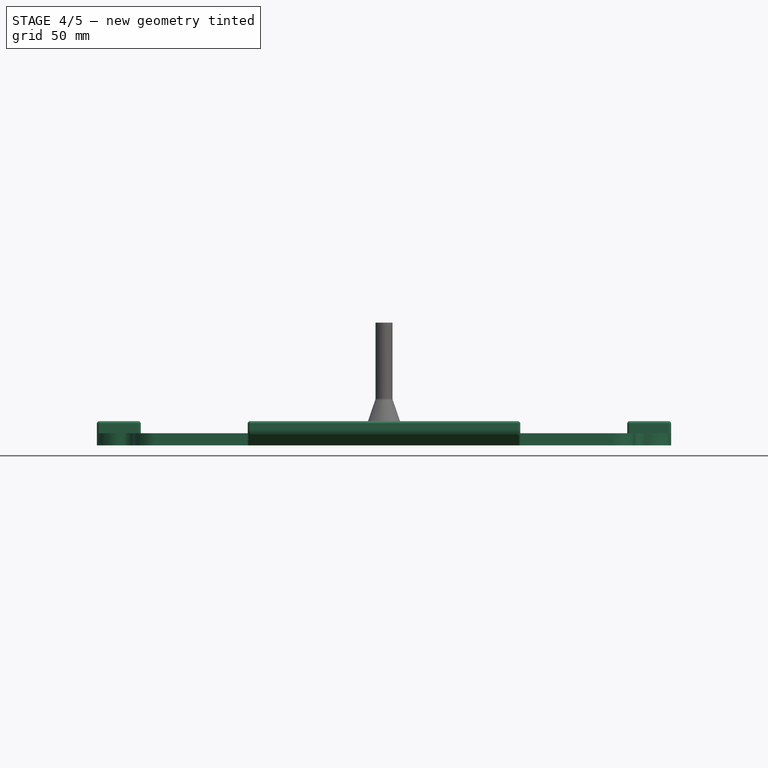
[diagram: stage 4 of 5 — front view after this stage's code; geometry added in this stage tinted green]
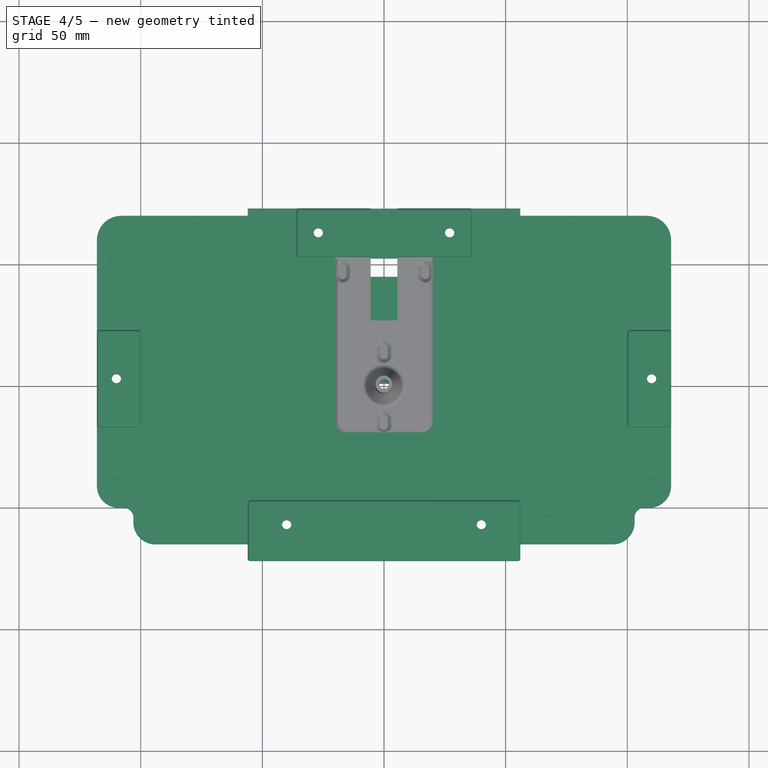
[diagram: stage 4 of 5 — top view after this stage's code; geometry added in this stage tinted green]
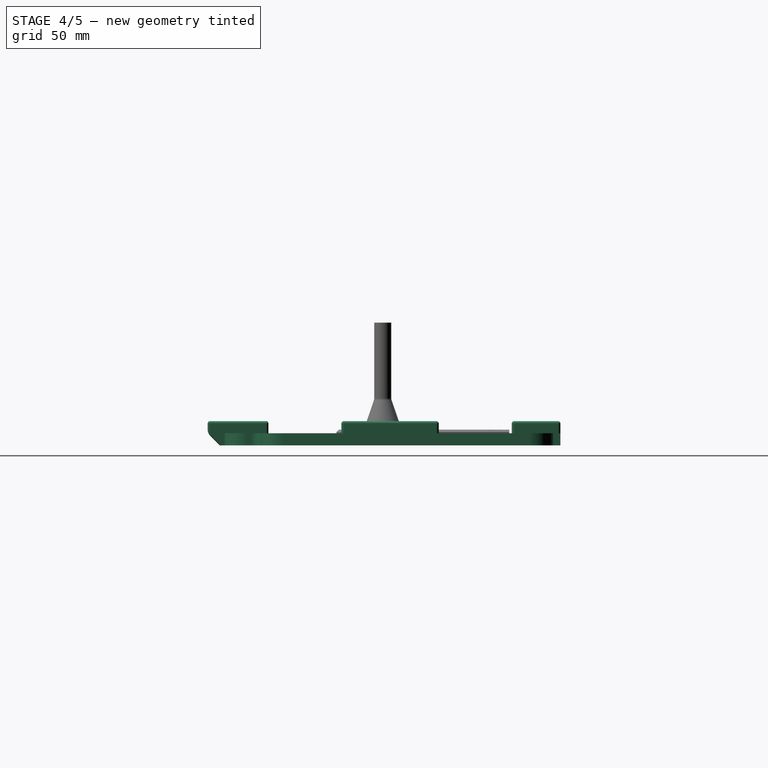
[diagram: stage 4 of 5 — right view after this stage's code; geometry added in this stage tinted green]
FEATURE [Part::Cylinder] Cylinder  label="EndNutSpace"
  Angle = 360
  Height = 3.5
  Placement = pos=(-96.5,42.5,-3.5) rot=(0,0,1;0rad)
  Radius = 4
FEATURE [Part::FeaturePython] Clone032  label="Clone of IlluminationLidCut002"  # Draft clone (typed FeaturePython)
  Objects = -> [Fusion004]
  Scale = (1,1,1)
FEATURE [Part::Cut] Cut016  label="LidCut"
  Base = -> Cut019
  Tool = -> Clone032
FEATURE [Part::Cut] Cut014  label="EndNutSpaceCut"
  Base = -> Cut016
  Tool = -> Cylinder
FEATURE [Part::FeaturePython] refine009  label="CarrilUnit"  # WARN: FeaturePython — macro-defined, semantics opaque (R4)
  Base = -> Fusion011
  Placement = pos=(0,1.5,0) rot=(0,0,1;0rad)
  expr: Placement.Base.y = CarrilLen.Length
FEATURE [Part::Mirroring] Part__Mirroring023010  label="CarrilUnit (Mirror #1)"
  Base = (0,0,0)
  Normal = (0,1,0)
  Source = -> refine009
FEATURE [Part::MultiFuse] Fusion001
  Shapes = -> [Part__Mirroring023010,refine009]
FEATURE [Part::Mirroring] Part__Mirroring001  label="Fusion001 (Mirror #2)"
  Base = (0,0,0)
  Normal = (1,0,0)
  Source = -> Fusion001
FEATURE [Part::MultiFuse] Fusion002
  Shapes = -> [Fusion001,Part__Mirroring001]
FEATURE [Part::FeaturePython] refine002  label="Carril"  # WARN: FeaturePython — macro-defined, semantics opaque (R4)
  Base = -> Fusion002
FEATURE [App::DocumentObjectGroup] Group007  label="Tool_src"
  Group = -> [refine002]
FEATURE [Part::FeaturePython] Clone009002010  label="Clone of Carril"  # Draft clone (typed FeaturePython)
  Objects = -> [refine002]
  Placement = pos=(17,47,1.5) rot=(0,0,1;0rad)
  Scale = (1,1,1)
FEATURE [Part::FeaturePython] Clone009002011  label="Clone of Carril001"  # Draft clone (typed FeaturePython)
  Objects = -> [refine002]
  Placement = pos=(0,14,1.5) rot=(0,0,1;0rad)
  Scale = (1,1,1)
FEATURE [Part::FeaturePython] Clone009002012  label="Clone of Carril002"  # Draft clone (typed FeaturePython)
  Objects = -> [refine002]
  Placement = pos=(0,-15,1.5) rot=(0,0,1;0rad)
  Scale = (1,1,1)
FEATURE [Part::FeaturePython] refine007  label="refine_TubeFusion"  # WARN: FeaturePython — macro-defined, semantics opaque (R4)
  Base = -> Fusion012
FEATURE [Part::Fillet] Fillet001004  label="TubeFillet"
  Base = -> refine007
  Edges = 2 edges r=2: [Edge5,Edge11]
FEATURE [Part::Mirroring] Part__Mirroring023011  label="Clone of Carril (Mirror #9)"
  Base = (0,0,0)
  Normal = (1,0,0)
  Source = -> Clone009002010
FEATURE [Part::Cut] Cut030
  Base = -> Fillet001004
  Tool = -> Clone009002011
FEATURE [Part::Cut] Cut031
  Base = -> Cut030
  Tool = -> Clone009002012
FEATURE [Part::Cut] Cut032
  Base = -> Cut031
  Tool = -> Clone009002010
FEATURE [Part::Cut] Cut033  label="TubeBolts"
  Base = -> Cut032
  Tool = -> Part__Mirroring023011
FEATURE [App::DocumentObjectGroup] Group006  label="Tube_src"
  Group = -> [Cut033]
FEATURE [Part::FeaturePython] Clone009002014  label="TubeLid"  # Draft clone (typed FeaturePython)
  Objects = -> [Cut033]
  Scale = (1,1,1)
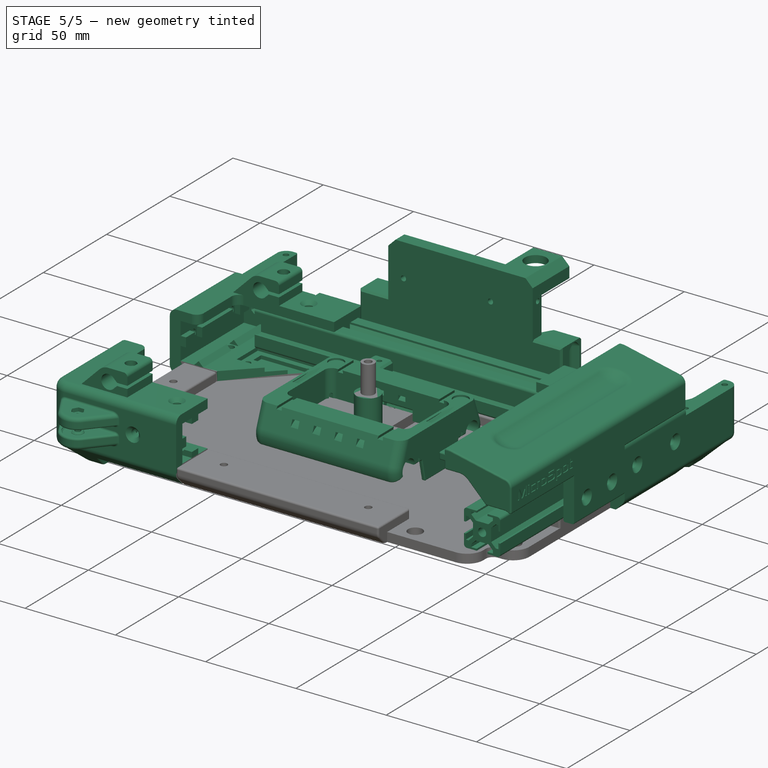
[diagram: stage 5 of 5 — iso view after this stage's code; geometry added in this stage tinted green]
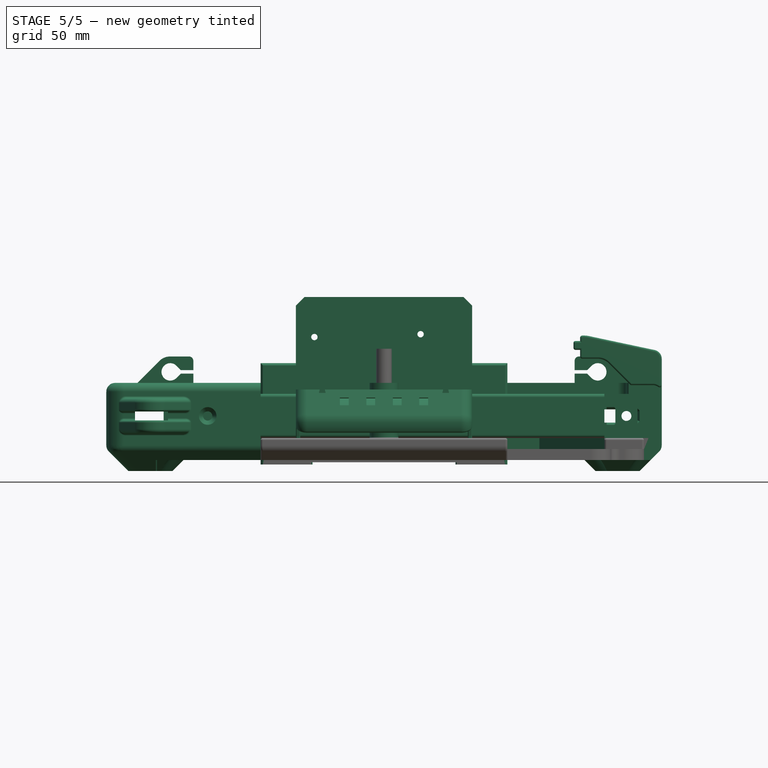
[diagram: stage 5 of 5 — front view after this stage's code; geometry added in this stage tinted green]
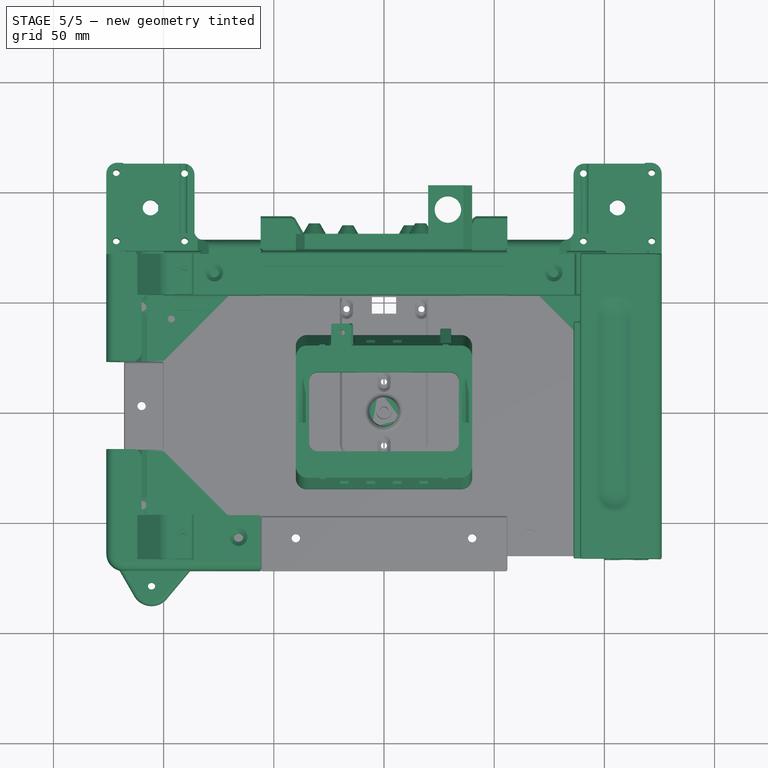
[diagram: stage 5 of 5 — top view after this stage's code; geometry added in this stage tinted green]
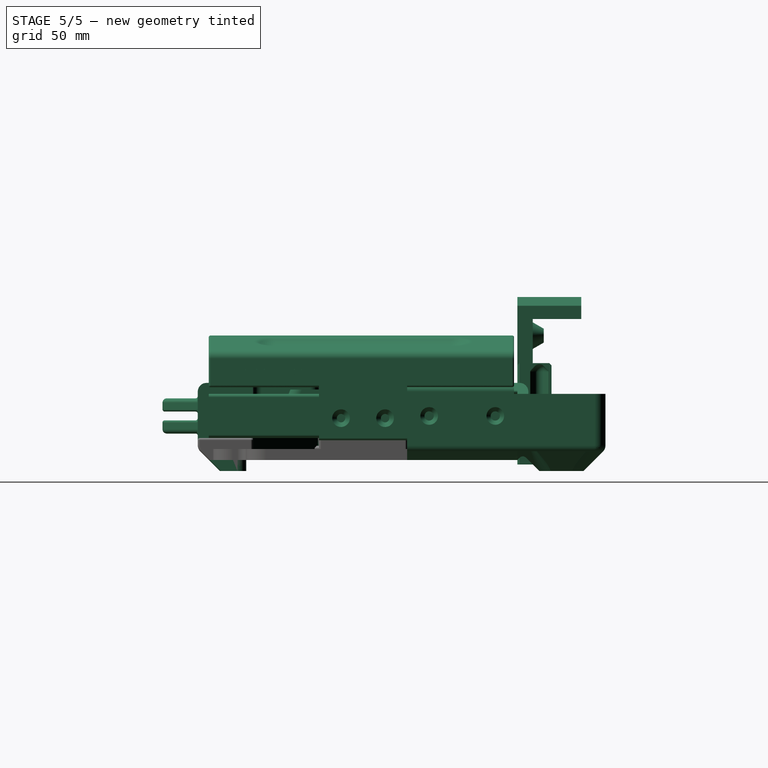
[diagram: stage 5 of 5 — right view after this stage's code; geometry added in this stage tinted green]
FEATURE [Sketcher::SketchObject] Sketch  label="MainPlate"
  sketch-geometry (12):
    g0: LineSegment StartX=94 StartY=-65 StartZ=0 EndX=0 EndY=-65 EndZ=0
    g1: LineSegment StartX=0 StartY=-65 StartZ=0 EndX=0 EndY=73 EndZ=0
    g2: LineSegment StartX=56 StartY=70 StartZ=0 EndX=108 EndY=70 EndZ=0
    g3: LineSegment StartX=118 StartY=-41 StartZ=0 EndX=118 EndY=60 EndZ=0
    g4: ArcOfCircle CenterX=94 CenterY=-56 CenterZ=0 NormalX=0 NormalY=0 NormalZ=1 Radius=9 StartAngle=4.71239 EndAngle=6.28319
    g5: ArcOfCircle CenterX=109 CenterY=-41 CenterZ=0 NormalX=0 NormalY=0 NormalZ=1 Radius=9 StartAngle=4.71239 EndAngle=6.28319
    g6: ArcOfCircle CenterX=108 CenterY=60 CenterZ=0 NormalX=0 NormalY=0 NormalZ=1 Radius=10 StartAngle=6.28318 EndAngle=7.85398
    g7: LineSegment StartX=109 StartY=-50 StartZ=0 EndX=107 EndY=-50 EndZ=0
    g8: LineSegment StartX=103 StartY=-54 StartZ=0 EndX=103 EndY=-56 EndZ=0
    g9: ArcOfCircle CenterX=107 CenterY=-54 CenterZ=0 NormalX=0 NormalY=0 NormalZ=1 Radius=4 StartAngle=1.5708 EndAngle=3.14159
    g10: LineSegment StartX=0 StartY=73 StartZ=0 EndX=56 EndY=73 EndZ=0
    g11: LineSegment StartX=56 StartY=73 StartZ=0 EndX=56 EndY=70 EndZ=0
  constraints (38):
    c: Coincident(g0,g1)
    c: Coincident(g2,g6)
    c: Coincident(g3,g6)
    c: Horizontal(g2)
    c: Horizontal(g0)
    c: Coincident(g4,g0)
    c: Vertical(g3)
    c: Coincident(g3,g5)
    c: Vertical(g1)
    c: PointOnObject(g1,g-2)
    c: Tangent(g3,g6)
    c: Tangent(g5,g3)
    c: Tangent(g0,g4)
    c: Equal(g4,g5)
    c: DistanceX(g3) = 118
    c: DistanceY(g0) = -65
    c: Tangent(g6,g2)
    c: Radius(g6) = 10
    c: DistanceY(g3) = -41
    c: Radius(g5) = 9
    c: Tangent(g8,g9) = -1.5708
    c: Tangent(g7,g9) = -1.5708
    c: Coincident(g8,g4)
    c: Coincident(g7,g5)
    c: Horizontal(g7)
    c: Vertical(g8)
    c: Tangent(g4,g8)
    c: Tangent(g7,g5)
    c: Equal(g8,g7)
    c: Radius(g9) = 4
    c: DistanceY(g2) = 70
    c: DistanceX(g2) = 56
    c: Coincident(g10,g11)
    c: Vertical(g11)
    c: Horizontal(g10)
    c: Coincident(g11,g2)
    c: Coincident(g10,g1)
    c: DistanceY(g11,g11) = 3
FEATURE [Part::Feature] Fillet002  label="T slot extrusion 20x20x200.001"
  Placement = pos=(-100,-67,5) rot=(0,-1,0;1.5708rad)
  shape: bbox 200 x 20 x 20 mm, 51 faces (baked)
FEATURE [Part::Mirroring] Part__Mirroring007  label="T slot extrusion 20x20x200.001 (Mirror #8)"
  Base = (0,3,0)
  Normal = (0,1,0)
  Source = -> Fillet002
FEATURE [Part::Feature] Fillet001001  label="T slot extrusion 20x20x140.001"
  Placement = pos=(-120,-67,5) rot=(1,0,0;1.5708rad)
  shape: bbox 20 x 140 x 20 mm, 51 faces (baked)
FEATURE [Part::Mirroring] Part__Mirroring  label="T slot extrusion 20x20x140.001 (Mirror #1)"
  Base = (0,0,0)
  Normal = (1,0,0)
  Source = -> Fillet001001
FEATURE [Sketcher::SketchObject] Sketch017  label="M3Bolt004"
  Placement = pos=(0,0,0) rot=(0.57735,0.57735,0.57735;2.0944rad)
  expr: Constraints[9] = 1.5 - pars.CilTight
  sketch-geometry (5):
    g0: LineSegment StartX=0 StartY=16.6 StartZ=0 EndX=1.4 EndY=16.6 EndZ=0
    g1: LineSegment StartX=1.4 StartY=16.6 StartZ=0 EndX=1.4 EndY=1.6 EndZ=0
    g2: LineSegment StartX=1.4 StartY=1.6 StartZ=0 EndX=3 EndY=0 EndZ=0
    g3: LineSegment StartX=3 StartY=0 StartZ=0 EndX=0 EndY=0 EndZ=0
    g4: LineSegment StartX=0 StartY=0 StartZ=0 EndX=0 EndY=16.6 EndZ=0
  constraints (15):
    c: Coincident(g0,g1)
    c: Coincident(g1,g2)
    c: Coincident(g3,g4)
    c: Coincident(g4,g0)
    c: Horizontal(g0)
    c: Horizontal(g3)
    c: Vertical(g4)
    c: Vertical(g1)
    c: PointOnObject(g0,g-2)
    c: DistanceX(g0,g0) = 1.4
    c: DistanceY(g1,g1) = 15
    c: Coincident(g2,g3)
    c: Angle(g2,g3) = 0.785398
    c: DistanceX(g3,g3) = 3
    c: PointOnObject(g2,g-1)
FEATURE [PartDesign::Revolution] Revolution001  label="M3Bolt005"
  Angle = 360
  Axis = (0,0,1)
  Base = (0,0,0)
  Placement = pos=(0,0,0) rot=(0.57735,0.57735,0.57735;2.0944rad)
  ReferenceAxis = -> Sketch017 [V_Axis]
  Reversed = true
  Sketch = -> Sketch017
FEATURE [Sketcher::SketchObject] Sketch019  label="IlluminationLid"
  sketch-geometry (5):
    g0: LineSegment StartX=0 StartY=53 StartZ=0 EndX=20 EndY=53 EndZ=0
    g1: LineSegment StartX=20 StartY=53 StartZ=0 EndX=20 EndY=-14.5 EndZ=0
    g2: LineSegment StartX=15.5 StartY=-19 StartZ=0 EndX=0 EndY=-19 EndZ=0
    g3: LineSegment StartX=0 StartY=-19 StartZ=0 EndX=0 EndY=53 EndZ=0
    g4: ArcOfCircle CenterX=15.5 CenterY=-14.5 CenterZ=0 NormalX=0 NormalY=0 NormalZ=1 Radius=4.5 StartAngle=4.71239 EndAngle=6.28319
  constraints (14):
    c: Coincident(g0,g1)
    c: Coincident(g2,g3)
    c: Coincident(g3,g0)
    c: Horizontal(g0)
    c: Horizontal(g2)
    c: Vertical(g1)
    c: Vertical(g3)
    c: PointOnObject(g2,g-2)
    c: Tangent(g2,g4) = 1.5708
    c: Tangent(g1,g4) = 1.5708
    c: Radius(g4) = 4.5
    c: DistanceX(g0,g0) = 20
    c: DistanceY(g0) = 53
    c: DistanceY(g3,g3) = 72
FEATURE [Part::FeaturePython] Clone017  label="Clone of M3Bolt005"  # Draft clone (typed FeaturePython)
  Objects = -> [Revolution001]
  Placement = pos=(0,14,1.5) rot=(0.57735,0.57735,-0.57735;4.18879rad)
  Scale = (1,1,1)
FEATURE [Part::FeaturePython] Clone018  label="Clone of M3Bolt006"  # Draft clone (typed FeaturePython)
  Objects = -> [Revolution001]
  Placement = pos=(0,-15,1.5) rot=(-1,0,0;1.5708rad)
  Scale = (1,1,1)
FEATURE [Part::FeaturePython] Clone019  label="Clone of M3Bolt007"  # Draft clone (typed FeaturePython)
  Objects = -> [Revolution001]
  Placement = pos=(17,47,1.5) rot=(-0.57735,-0.57735,0.57735;2.0944rad)
  Scale = (1,1,1)
FEATURE [Part::Cylinder] Cylinder001  label="SmLane"
  Angle = 360
  Height = 30
  Radius = 6.5
FEATURE [Part::FeaturePython] Xcarriage_01  label="Xcarriage"  # a2plus imported part (geometry in sourceFile) (typed FeaturePython)
  Placement = pos=(0,0,27) rot=(0,0,1;0rad)
  fixedPosition = true
  sourceFile = ./../Axes/XCarriage/Xcarriage.fcstd
  timeLastImport = 1.5206e+09
  updateColors = true
FEATURE [Part::FeaturePython] RAxisShield_step1_01  label="RAxisShield"  # a2plus imported part (geometry in sourceFile) (typed FeaturePython)
  Placement = pos=(110,3,14) rot=(0,0,1;0rad)
  fixedPosition = false
  sourceFile = ./AxisShield.fcstd
  timeLastImport = 1.52943e+09
  updateColors = true
FEATURE [Part::FeaturePython] LBackCorner_step1_01  label="LBackCorner"  # a2plus imported part (geometry in sourceFile) (typed FeaturePython)
  Placement = pos=(-106,93,25) rot=(0,0,1;0rad)
  fixedPosition = false
  sourceFile = ./../../Step/Printed/MainFrame/LBackCorner.step
  timeLastImport = 1.52292e+09
  updateColors = true
FEATURE [Part::FeaturePython] RBackCorner_step1_01  label="RBackCorner"  # a2plus imported part (geometry in sourceFile) (typed FeaturePython)
  Placement = pos=(106,93,25) rot=(0,0,1;0rad)
  fixedPosition = false
  sourceFile = ./BackCorner.fcstd
  timeLastImport = 1.52292e+09
  updateColors = true
FEATURE [Part::FeaturePython] FrontCorner_01  label="FrontCorner"  # a2plus imported part (geometry in sourceFile) (typed FeaturePython)
  Placement = pos=(110,-79,15) rot=(0,0,1;0rad)
  fixedPosition = false
  sourceFile = ./FrontCorner.fcstd
  timeLastImport = 1.52267e+09
  updateColors = true
FEATURE [Part::FeaturePython] ElecMain_01  label="ElecMain"  # a2plus imported part (geometry in sourceFile) (typed FeaturePython)
  Placement = pos=(0,73,25) rot=(0,0,1;0rad)
  fixedPosition = false
  sourceFile = ./../Electronics Holder/ElecMain.fcstd
  timeLastImport = 1.52266e+09
  updateColors = true
FEATURE [Part::Mirroring] Part__Mirroring023006  label="FrontCorner (Mirror #6)"
  Base = (0,0,0)
  Normal = (1,0,0)
  Source = -> FrontCorner_01
FEATURE [Part::Cut] Cut001  label="CenterBoltCut"
  Base = -> Cut014
  Tool = -> Clone017
FEATURE [Part::Cut] Cut015  label="CenterBoltCut001"
  Base = -> Cut001
  Tool = -> Clone018
FEATURE [App::DocumentObjectGroup] Group008  label="FemtoPocket_ordered"
  Group = -> [Pad004,Pad005,refine008,Pocket001,Pad007,Pad008,Pad009,Mirrored]
FEATURE [App::DocumentObjectGroup] Group002  label="Illumination_src"
  Group = -> [Fusion004,Group008,Pad006]
FEATURE [Part::Mirroring] Part__Mirroring023009  label="Clone of M3Bolt007 (Mirror #6)"
  Base = (0,0,0)
  Normal = (1,0,0)
  Source = -> Clone019
FEATURE [Part::Cut] Cut028
  Base = -> Cut015
  Tool = -> Clone019
FEATURE [Part::Cut] Cut029  label="BoltCuts"
  Base = -> Cut028
  Tool = -> Part__Mirroring023009
FEATURE [Part::FeaturePython] refine001  label="refine_EndNutSpaceCut"  # WARN: FeaturePython — macro-defined, semantics opaque (R4)
  Base = -> Cut029
FEATURE [App::DocumentObjectGroup] Group001  label="Cover_src"
  Group = -> [Fillet001003,Cut014,Cut016,refine001,Fusion009]
FEATURE [Part::FeaturePython] Clone009002009  label="LowerCover"  # Draft clone (typed FeaturePython)
  Objects = -> [refine001]
  Scale = (1,1,1)
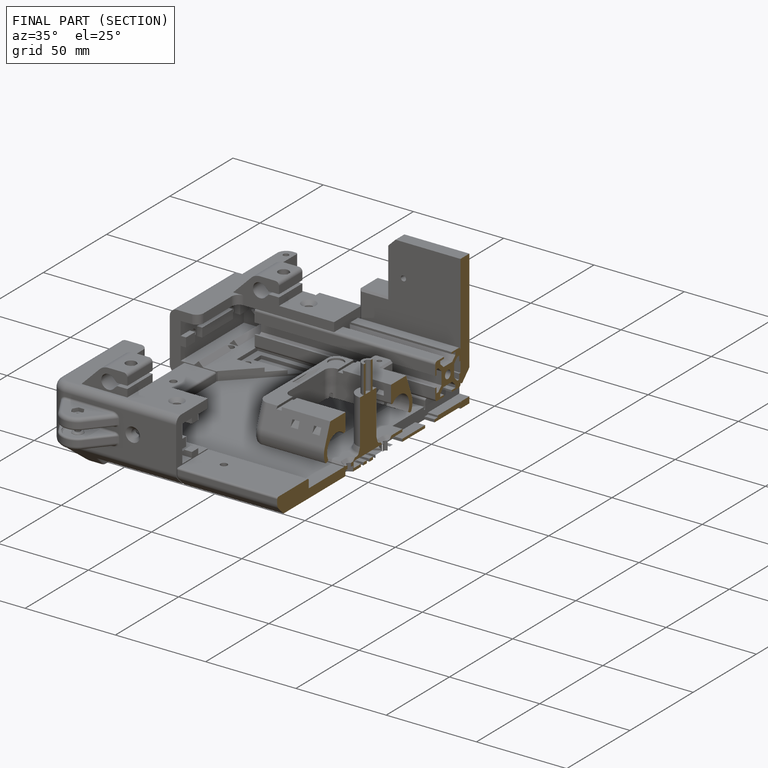
[diagram: finished part — half-section view (interior)]
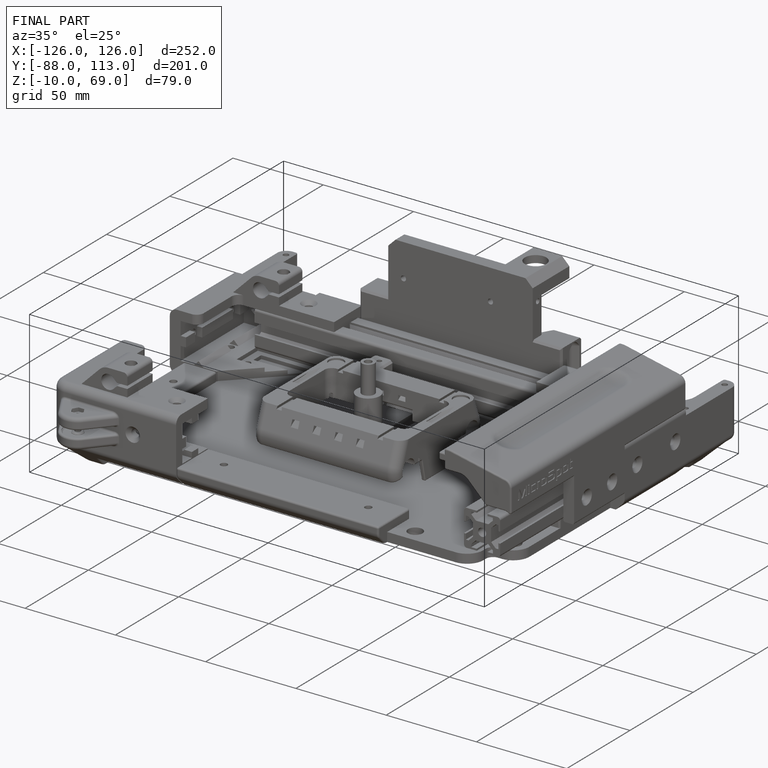
[diagram: finished part — iso view with bounding-box wireframe]
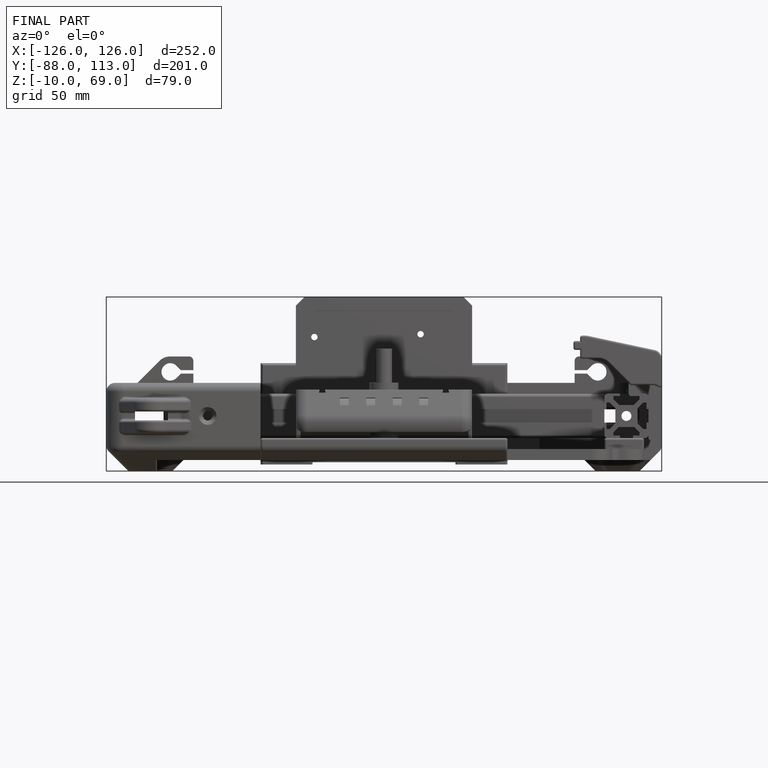
[diagram: finished part — front view with bounding-box wireframe]
